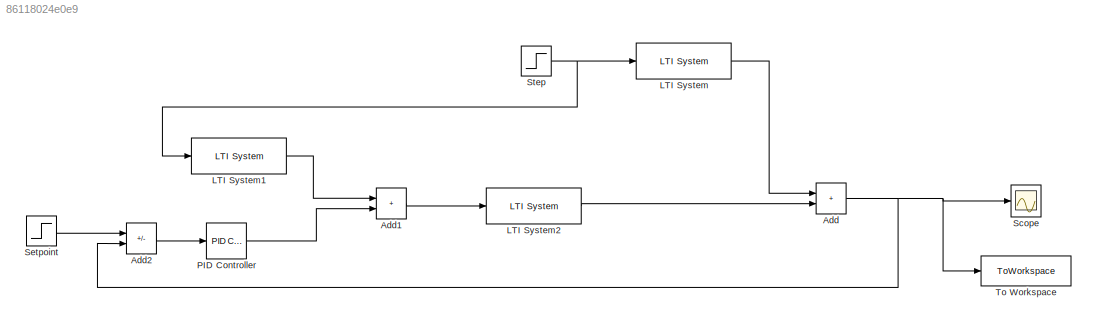
MODEL slx_86118024e0e9
KIND model
CONFIG AbsTol = auto
CONFIG EnableMultiTasking = off
CONFIG FixedStep = auto
CONFIG MaxStep = auto
CONFIG MinStep = auto
CONFIG RelTol = 1e-3
CONFIG SampleTimeConstraint = Unconstrained
CONFIG SolverName = VariableStepAuto
CONFIG StartTime = 0.0
CONFIG StopTime = 100
WORKSPACE source: MATLAB code (in-file)
WORKSPACE s = tf('s')
WORKSPACE Kd = 0.25/0.5  (= 0.5)
WORKSPACE Dd = 10
WORKSPACE taud = 30
WORKSPACE Gd = tf(Kd,[taud 1],'iodelay',Dd)
WORKSPACE Kp = 0.4
WORKSPACE Dp = 7.5
WORKSPACE taup = 25
WORKSPACE Gp = tf(Kp,[taup 1],'iodelay',Dp)
WORKSPACE Gff = -1*Gd*(1-Dd*s/2)*(taup*s+1)/(1-Dd*s/2)/Kp
BLOCK [Sum] Add
  IconShape = rectangular
  Ports = [2, 1]
BLOCK [Sum] Add1
  IconShape = rectangular
  Ports = [2, 1]
BLOCK [Sum] Add2
  IconShape = rectangular
  Inputs = +-
  Ports = [2, 1]
BLOCK [Reference] LTI System  REF=cstblocks/LTI System
  Ports = [1, 1]
  SourceBlock = cstblocks/LTI System
  SourceProductBaseCode = CT
  SourceType = LTI Block
BLOCK [Reference] LTI System1  REF=cstblocks/LTI System
  Ports = [1, 1]
  SourceBlock = cstblocks/LTI System
  SourceProductBaseCode = CT
  SourceType = LTI Block
BLOCK [Reference] LTI System2  REF=cstblocks/LTI System
  Ports = [1, 1]
  SourceBlock = cstblocks/LTI System
  SourceProductBaseCode = CT
  SourceType = LTI Block
BLOCK [Reference] PID Controller  REF=pid_lib/PID Controller
  Ports = [1, 1]
  SourceBlock = pid_lib/PID Controller
  SourceProductBaseCode = SL
  SourceType = PID 1dof
BLOCK [Scope] Scope
  Floating = off
  NumInputPorts = 1
  Ports = [1]
  ScopeSpecificationString = Simulink.scopes.TimeScopeBlockCfg('CurrentConfiguration', extmgr.ConfigurationSet(extmgr.Configuration('Core','General UI',true),extmgr.Configuration('Core','Source UI',true),extmgr.Configuration('Sources','WiredSimulink',true),extmgr.Configuration('Visuals','Time Domain',true,'SerializedDisplays',{struct('MinYLimReal','-0.05367','MaxYLimReal','0.12237','YLabelReal','','MinYLimMag','0.00000','MaxY...<+1378ch>
BLOCK [Step] Setpoint
  After = 0
  SampleTime = 0
  Time = 2
BLOCK [Step] Step
  SampleTime = 0
BLOCK [ToWorkspace] To Workspace
  FixptAsFi = on
  MaxDataPoints = inf
  Ports = [1]
  SampleTime = -1
  SaveFormat = Timeseries
  VariableName = simout
LINE Add1:1 -> LTI System2:1
LINE Add2:1 -> PID Controller:1
NET Add:1 -> Add2:2, Scope:1, To Workspace:1
LINE LTI System1:1 -> Add1:1
LINE LTI System2:1 -> Add:2
LINE LTI System:1 -> Add:1
LINE PID Controller:1 -> Add1:2
LINE Setpoint:1 -> Add2:1
NET Step:1 -> LTI System1:1, LTI System:1
note: NET lines group one-source signal fan-out (src -> all destinations, sorted); 1:1 wires keep LINE
